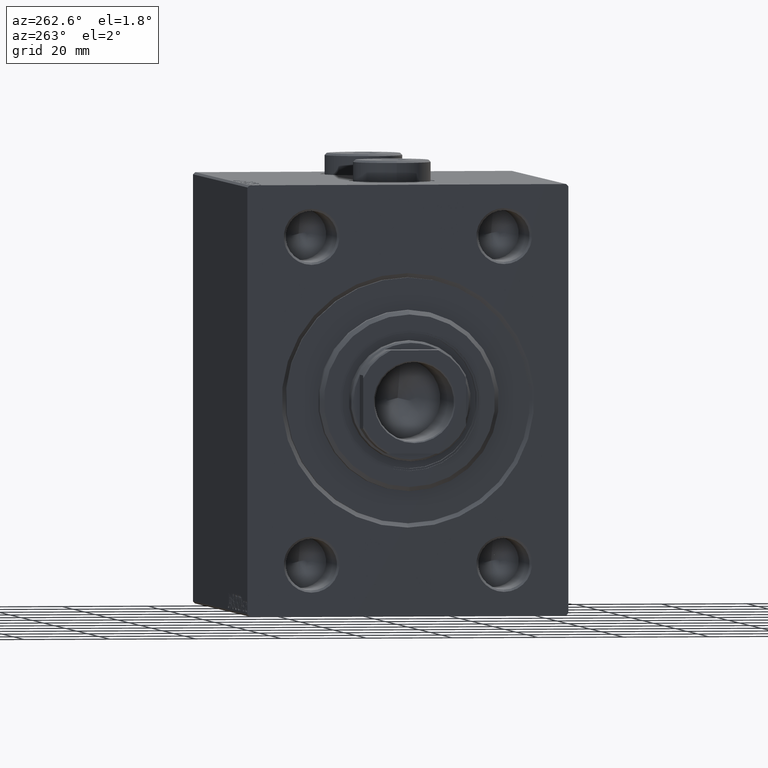
[diagram: clean part render]
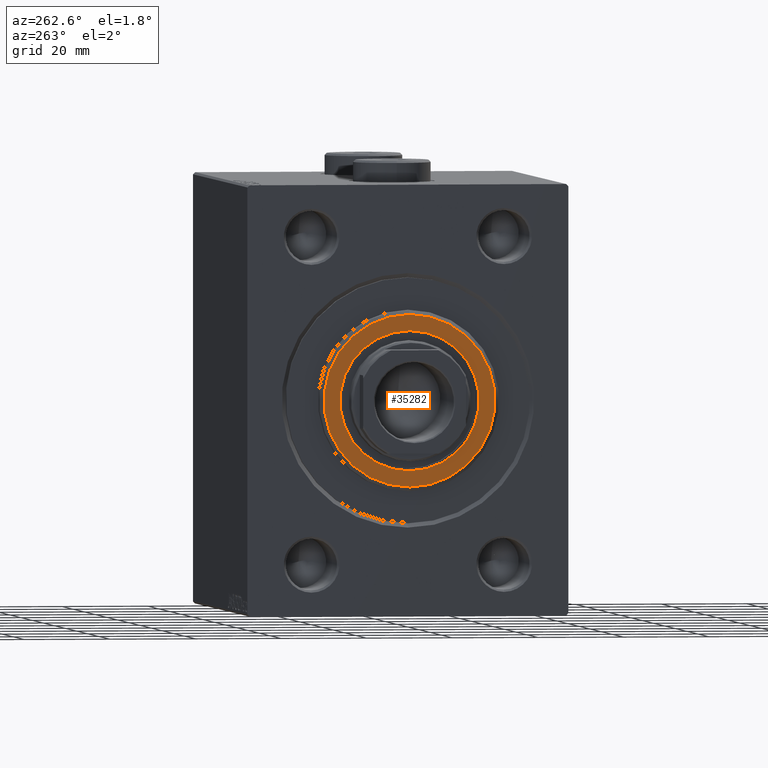
[diagram: same view with one face highlighted and labeled with its STEP entity id]
A machine part, auxiliary view. The second image highlights one B-rep face of the part: STEP entity #35282.
In plain terms, the highlighted planar face has unit normal (-1, 0, 0).
Its self-contained STEP definition (entity closure, byte-faithful):
#4071 = CARTESIAN_POINT ( 'NONE',  ( 3.000000000000000000, 0.000000000000000000, 0.000000000000000000 ) ) ;
#6479 = EDGE_CURVE ( 'NONE', #36228, #25975, #26942, .T. ) ;
#6856 = DIRECTION ( 'NONE',  ( 0.000000000000000000, 0.000000000000000000, -1.000000000000000000 ) ) ;
#7922 = CIRCLE ( 'NONE', #33797, 16.25000000000000000 ) ;
#8307 = ORIENTED_EDGE ( 'NONE', *, *, #21807, .T. ) ;
#8437 = DIRECTION ( 'NONE',  ( 0.000000000000000000, 0.000000000000000000, -1.000000000000000000 ) ) ;
#8784 = CARTESIAN_POINT ( 'NONE',  ( 3.000000000000000000, 0.000000000000000000, -16.25000000000000000 ) ) ;
#9576 = VERTEX_POINT ( 'NONE', #36060 ) ;
#13169 = CARTESIAN_POINT ( 'NONE',  ( 3.000000000000000000, 0.000000000000000000, 0.000000000000000000 ) ) ;
#14374 = AXIS2_PLACEMENT_3D ( 'NONE', #13169, #27274, #37904 ) ;
#14438 = EDGE_CURVE ( 'NONE', #9576, #17676, #19789, .T. ) ;
#16064 = DIRECTION ( 'NONE',  ( 1.000000000000000000, -0.000000000000000000, 0.000000000000000000 ) ) ;
#16217 = EDGE_LOOP ( 'NONE', ( #23791, #36226 ) ) ;
#16517 = FACE_BOUND ( 'NONE', #16217, .T. ) ;
#17676 = VERTEX_POINT ( 'NONE', #41095 ) ;
#19789 = CIRCLE ( 'NONE', #21221, 19.99999999999999645 ) ;
#21221 = AXIS2_PLACEMENT_3D ( 'NONE', #34383, #23974, #6856 ) ;
#21341 = DIRECTION ( 'NONE',  ( 0.000000000000000000, 0.000000000000000000, -1.000000000000000000 ) ) ;
#21807 = EDGE_CURVE ( 'NONE', #17676, #9576, #44420, .T. ) ;
#23791 = ORIENTED_EDGE ( 'NONE', *, *, #42169, .F. ) ;
#23974 = DIRECTION ( 'NONE',  ( 1.000000000000000000, -0.000000000000000000, 0.000000000000000000 ) ) ;
#24734 = AXIS2_PLACEMENT_3D ( 'NONE', #33405, #16064, #44716 ) ;
#25975 = VERTEX_POINT ( 'NONE', #8784 ) ;
#26942 = CIRCLE ( 'NONE', #14374, 16.25000000000000000 ) ;
#27274 = DIRECTION ( 'NONE',  ( 1.000000000000000000, 0.000000000000000000, 0.000000000000000000 ) ) ;
#27461 = ORIENTED_EDGE ( 'NONE', *, *, #14438, .T. ) ;
#30616 = PLANE ( 'NONE',  #24734 ) ;
#33405 = CARTESIAN_POINT ( 'NONE',  ( 3.000000000000000000, 0.000000000000000000, 0.000000000000000000 ) ) ;
#33797 = AXIS2_PLACEMENT_3D ( 'NONE', #4071, #39654, #8437 ) ;
#34383 = CARTESIAN_POINT ( 'NONE',  ( 3.000000000000000000, 0.000000000000000000, 0.000000000000000000 ) ) ;
#35282 = ADVANCED_FACE ( 'NONE', ( #37562, #16517 ), #30616, .T. ) ;
#36060 = CARTESIAN_POINT ( 'NONE',  ( 3.000000000000000000, 2.510525938252074087E-15, -19.99999999999999645 ) ) ;
#36226 = ORIENTED_EDGE ( 'NONE', *, *, #6479, .F. ) ;
#36228 = VERTEX_POINT ( 'NONE', #43293 ) ;
#37562 = FACE_OUTER_BOUND ( 'NONE', #39392, .T. ) ;
#37904 = DIRECTION ( 'NONE',  ( 0.000000000000000000, 0.000000000000000000, -1.000000000000000000 ) ) ;
#38679 = CARTESIAN_POINT ( 'NONE',  ( 3.000000000000000000, 0.000000000000000000, 0.000000000000000000 ) ) ;
#39392 = EDGE_LOOP ( 'NONE', ( #8307, #27461 ) ) ;
#39654 = DIRECTION ( 'NONE',  ( 1.000000000000000000, 0.000000000000000000, 0.000000000000000000 ) ) ;
#41095 = CARTESIAN_POINT ( 'NONE',  ( 3.000000000000000000, 0.000000000000000000, 19.99999999999999645 ) ) ;
#42169 = EDGE_CURVE ( 'NONE', #25975, #36228, #7922, .T. ) ;
#42187 = AXIS2_PLACEMENT_3D ( 'NONE', #38679, #45377, #21341 ) ;
#43293 = CARTESIAN_POINT ( 'NONE',  ( 3.000000000000000000, 1.990051048614449313E-15, 16.25000000000000000 ) ) ;
#44420 = CIRCLE ( 'NONE', #42187, 19.99999999999999645 ) ;
#44716 = DIRECTION ( 'NONE',  ( 0.000000000000000000, 0.000000000000000000, -1.000000000000000000 ) ) ;
#45377 = DIRECTION ( 'NONE',  ( 1.000000000000000000, -0.000000000000000000, 0.000000000000000000 ) ) ;